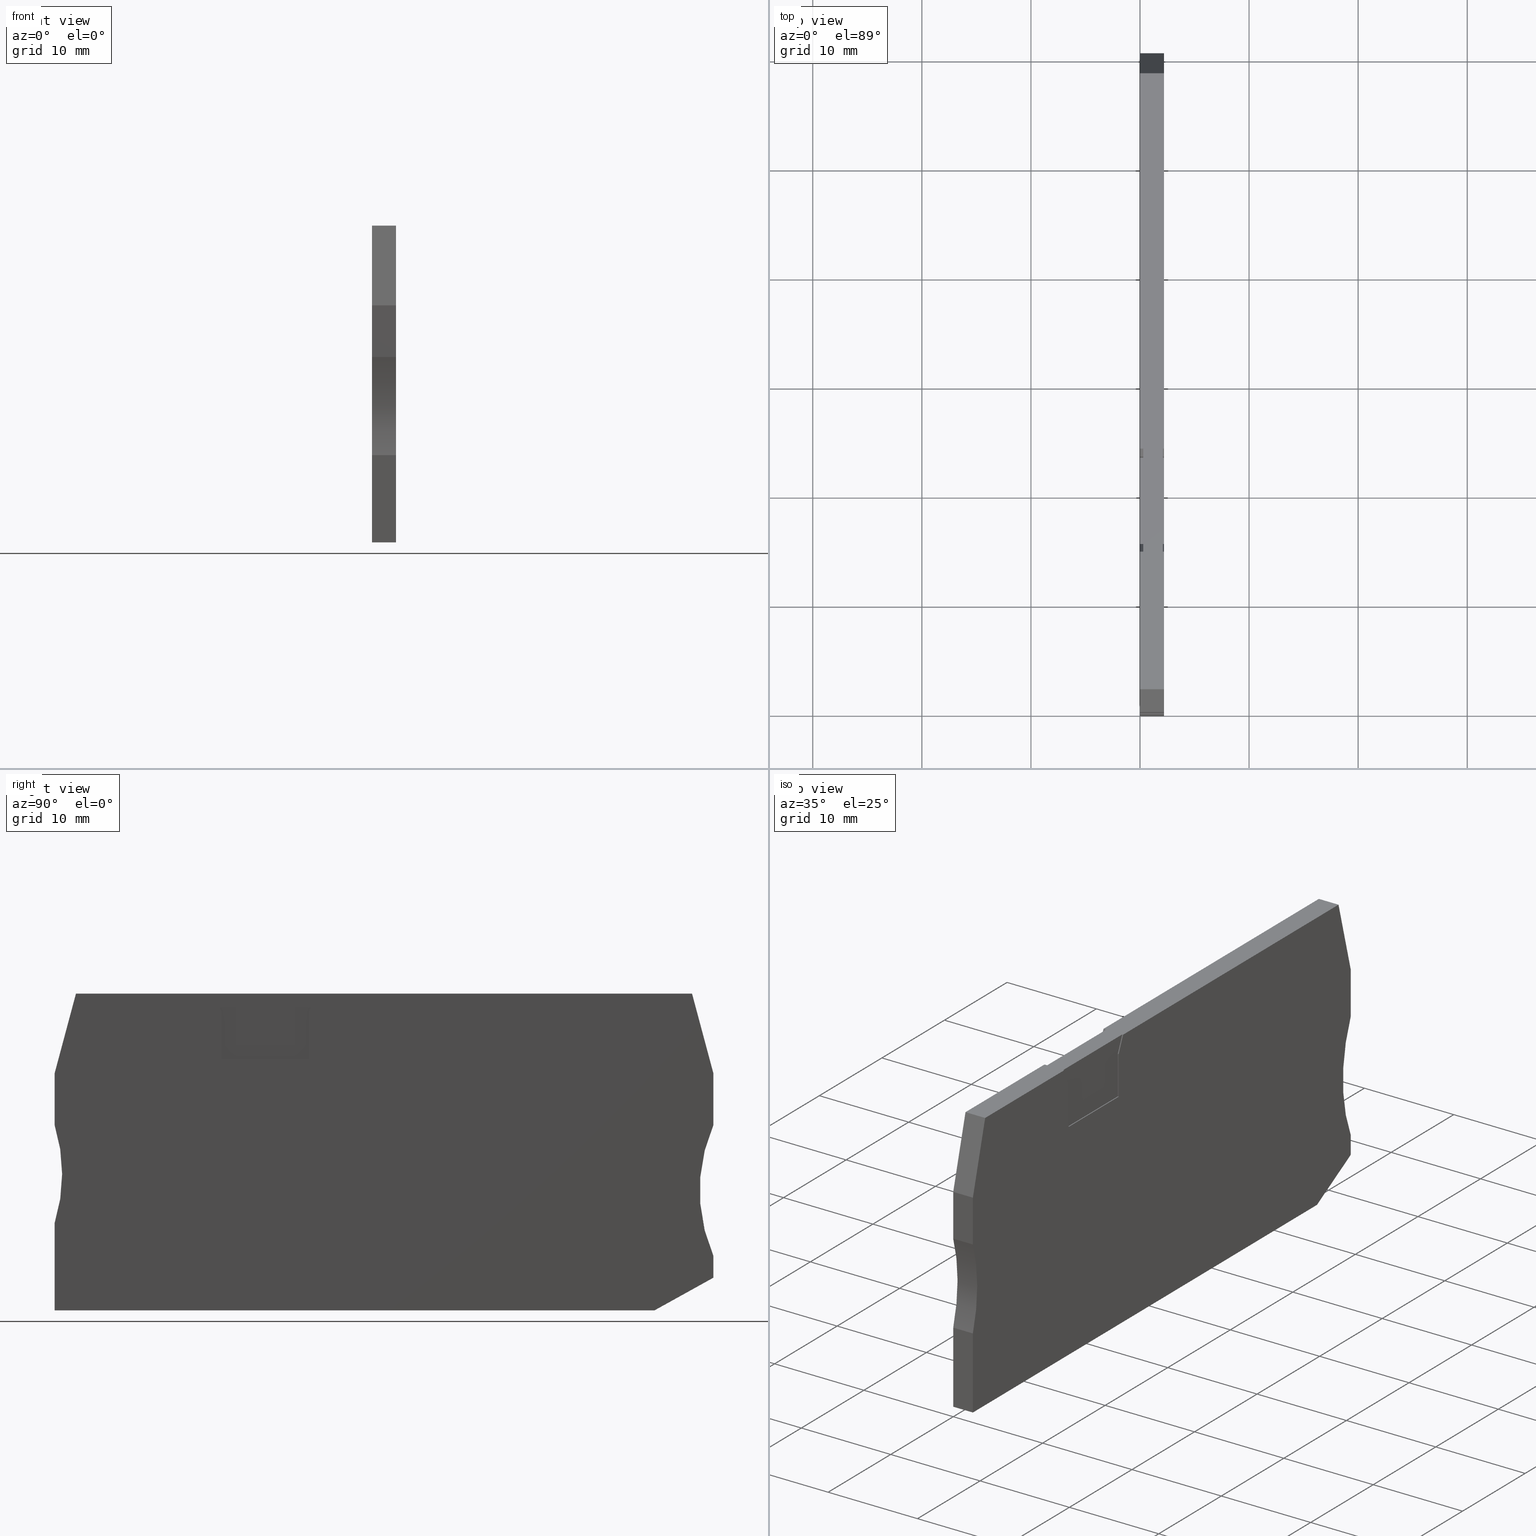
[diagram: canonical four-view strip — front | top / right | iso, engineering-drawing reading convention]
A machine part, canonical four-view strip (front | top / right | iso — engineering-drawing reading convention). The complete STEP part file that produces these views, byte-faithful:
ISO-10303-21;
HEADER;
FILE_DESCRIPTION(('Creo Elements/Direct Modeling STEP Export'),'2;1');
FILE_NAME(
'D:/temp/JobSpoolerServerData/JobServer Files/29ba83b2-660f-4959-82fb-90
b003ed063e/work/output/model.stp','2018-03-19T13:49:01',(''),(''),
'Creo Elements/Direct Modeling STEP processor for AP214 (Solid Model)',
'Creo Elements/Direct Modeling 18.1I  14-Aug-2016 (C) Parametric Technol
ogy GmbH','');
FILE_SCHEMA(('AUTOMOTIVE_DESIGN { 1 0 10303 214 1 1 1 1 }'));
ENDSEC;
DATA;
#10=CARTESIAN_POINT('',(2.23216722167601,-10.1500000000022,53.17));
#20=DIRECTION('',(0.,0.,-1.));
#30=DIRECTION('',(-1.,0.,0.));
#40=AXIS2_PLACEMENT_3D('',#10,#20,#30);
#50=PLANE('',#40);
#60=CARTESIAN_POINT('',(-21.2061407460473,-12.1300507694245,53.17));
#70=DIRECTION('',(-0.258819045103118,-0.965925826288908,0.));
#80=VECTOR('',#70,1.);
#90=LINE('',#60,#80);
#100=CARTESIAN_POINT('',(-20.4076385489742,-9.14999999999962,53.17));
#110=VERTEX_POINT('',#100);
#120=CARTESIAN_POINT('',(-22.367832778321,-16.4655444566073,53.17));
#130=VERTEX_POINT('',#120);
#140=EDGE_CURVE('',#110,#130,#90,.T.);
#150=ORIENTED_EDGE('',*,*,#140,.F.);
#160=CARTESIAN_POINT('',(-22.367832778321,-12.1300507694245,53.17));
#170=DIRECTION('',(0.,-1.,0.));
#180=VECTOR('',#170,1.);
#190=LINE('',#160,#180);
#200=CARTESIAN_POINT('',(-22.367832778321,-21.2000000000008,53.17));
#210=VERTEX_POINT('',#200);
#220=EDGE_CURVE('',#130,#210,#190,.T.);
#230=ORIENTED_EDGE('',*,*,#220,.F.);
#240=CARTESIAN_POINT('',(-36.6769207995752,-25.7000000000007,53.17));
#250=DIRECTION('',(0.,0.,1.));
#260=DIRECTION('',(1.,0.,0.));
#270=AXIS2_PLACEMENT_3D('',#240,#250,#260);
#280=CIRCLE('',#270,15.);
#290=CARTESIAN_POINT('',(-22.367832778321,-30.2000000000007,53.17));
#300=VERTEX_POINT('',#290);
#310=EDGE_CURVE('',#300,#210,#280,.T.);
#320=ORIENTED_EDGE('',*,*,#310,.T.);
#330=CARTESIAN_POINT('',(-22.367832778321,-12.1300507694245,53.17));
#340=DIRECTION('',(0.,-1.,0.));
#350=VECTOR('',#340,1.);
#360=LINE('',#330,#350);
#370=CARTESIAN_POINT('',(-22.367832778321,-38.1999999999931,53.17));
#380=VERTEX_POINT('',#370);
#390=EDGE_CURVE('',#300,#380,#360,.T.);
#400=ORIENTED_EDGE('',*,*,#390,.F.);
#410=CARTESIAN_POINT('',(11.4461541156319,-38.1999999999931,53.17));
#420=DIRECTION('',(1.,0.,0.));
#430=VECTOR('',#420,1.);
#440=LINE('',#410,#430);
#450=CARTESIAN_POINT('',(32.6248762617011,-38.1999999999931,53.17));
#460=VERTEX_POINT('',#450);
#470=EDGE_CURVE('',#380,#460,#440,.T.);
#480=ORIENTED_EDGE('',*,*,#470,.F.);
#490=CARTESIAN_POINT('',(11.4461541156319,-49.9500920346854,53.17));
#500=DIRECTION('',(0.874435210897321,0.485142311021165,0.));
#510=VECTOR('',#500,1.);
#520=LINE('',#490,#510);
#530=CARTESIAN_POINT('',(38.0321672216792,-35.199999999998,53.17));
#540=VERTEX_POINT('',#530);
#550=EDGE_CURVE('',#460,#540,#520,.T.);
#560=ORIENTED_EDGE('',*,*,#550,.F.);
#570=CARTESIAN_POINT('',(38.0321672216792,-12.1300507694245,53.17));
#580=DIRECTION('',(0.,1.,0.));
#590=VECTOR('',#580,1.);
#600=LINE('',#570,#590);
#610=CARTESIAN_POINT('',(38.0321672216792,-33.2000000000007,53.17));
#620=VERTEX_POINT('',#610);
#630=EDGE_CURVE('',#540,#620,#600,.T.);
#640=ORIENTED_EDGE('',*,*,#630,.F.);
#650=CARTESIAN_POINT('',(51.7798943065467,-27.2000000000007,53.17));
#660=DIRECTION('',(0.,0.,1.));
#670=DIRECTION('',(1.,0.,0.));
#680=AXIS2_PLACEMENT_3D('',#650,#660,#670);
#690=CIRCLE('',#680,15.);
#700=CARTESIAN_POINT('',(38.0321672216792,-21.2000000000007,53.17));
#710=VERTEX_POINT('',#700);
#720=EDGE_CURVE('',#710,#620,#690,.T.);
#730=ORIENTED_EDGE('',*,*,#720,.T.);
#740=CARTESIAN_POINT('',(38.0321672216792,-12.1300507694245,53.17));
#750=DIRECTION('',(0.,1.,0.));
#760=VECTOR('',#750,1.);
#770=LINE('',#740,#760);
#780=CARTESIAN_POINT('',(38.0321672216792,-16.4655444566058,53.17));
#790=VERTEX_POINT('',#780);
#800=EDGE_CURVE('',#710,#790,#770,.T.);
#810=ORIENTED_EDGE('',*,*,#800,.F.);
#820=CARTESIAN_POINT('',(36.8704751894059,-12.1300507694245,53.17));
#830=DIRECTION('',(-0.258819045103111,0.96592582628891,0.));
#840=VECTOR('',#830,1.);
#850=LINE('',#820,#840);
#860=CARTESIAN_POINT('',(36.0719729923328,-9.14999999999962,53.17));
#870=VERTEX_POINT('',#860);
#880=EDGE_CURVE('',#790,#870,#850,.T.);
#890=ORIENTED_EDGE('',*,*,#880,.F.);
#900=CARTESIAN_POINT('',(11.4461541156319,-9.14999999999962,53.17));
#910=DIRECTION('',(-1.,0.,0.));
#920=VECTOR('',#910,1.);
#930=LINE('',#900,#920);
#940=CARTESIAN_POINT('',(1.65066694096867,-9.14999999999962,53.17));
#950=VERTEX_POINT('',#940);
#960=EDGE_CURVE('',#870,#950,#930,.T.);
#970=ORIENTED_EDGE('',*,*,#960,.F.);
#980=CARTESIAN_POINT('',(0.391157740173536,-12.1300507694245,53.17));
#990=DIRECTION('',(0.389303997098565,0.921109330016302,0.));
#1000=VECTOR('',#990,1.);
#1010=LINE('',#980,#1000);
#1020=CARTESIAN_POINT('',(0.932167221679212,-10.8499999999587,53.17));
#1030=VERTEX_POINT('',#1020);
#1040=EDGE_CURVE('',#1030,#950,#1010,.T.);
#1050=ORIENTED_EDGE('',*,*,#1040,.T.);
#1060=CARTESIAN_POINT('',(0.932167221678688,-12.1300507694245,53.17));
#1070=DIRECTION('',(4.09450718512422E-13,1.,0.));
#1080=VECTOR('',#1070,1.);
#1090=LINE('',#1060,#1080);
#1100=CARTESIAN_POINT('',(0.932167221677451,-15.150000000008,53.17));
#1110=VERTEX_POINT('',#1100);
#1120=EDGE_CURVE('',#1110,#1030,#1090,.T.);
#1130=ORIENTED_EDGE('',*,*,#1120,.T.);
#1140=CARTESIAN_POINT('',(11.4461541156319,-15.1500000000123,53.17));
#1150=DIRECTION('',(1.,-4.08951118151342E-13,0.));
#1160=VECTOR('',#1150,1.);
#1170=LINE('',#1140,#1160);
#1180=CARTESIAN_POINT('',(-7.06783277832229,-15.1500000000048,53.17));
#1190=VERTEX_POINT('',#1180);
#1200=EDGE_CURVE('',#1190,#1110,#1170,.T.);
#1210=ORIENTED_EDGE('',*,*,#1200,.T.);
#1220=CARTESIAN_POINT('',(-7.06783277832108,-12.1300507694245,53.17));
#1230=DIRECTION('',(-3.99736267046952E-13,-1.,0.));
#1240=VECTOR('',#1230,1.);
#1250=LINE('',#1220,#1240);
#1260=CARTESIAN_POINT('',(-7.06783277832057,-10.8500000000082,53.17));
#1270=VERTEX_POINT('',#1260);
#1280=EDGE_CURVE('',#1270,#1190,#1250,.T.);
#1290=ORIENTED_EDGE('',*,*,#1280,.T.);
#1300=CARTESIAN_POINT('',(-6.52682329685673,-12.1300507694245,53.17));
#1310=DIRECTION('',(0.38930399708582,-0.921109330021689,0.));
#1320=VECTOR('',#1310,1.);
#1330=LINE('',#1300,#1320);
#1340=CARTESIAN_POINT('',(-7.78633249760118,-9.14999999999962,53.17));
#1350=VERTEX_POINT('',#1340);
#1360=EDGE_CURVE('',#1350,#1270,#1330,.T.);
#1370=ORIENTED_EDGE('',*,*,#1360,.T.);
#1380=EDGE_CURVE('',#1350,#110,#930,.T.);
#1390=ORIENTED_EDGE('',*,*,#1380,.F.);
#1400=EDGE_LOOP('',(#1390,#1370,#1290,#1210,#1130,#1050,#970,#890,#810,
#730,#640,#560,#480,#400,#320,#230,#150));
#1410=FACE_OUTER_BOUND('',#1400,.T.);
#1420=ADVANCED_FACE('',(#1410),#50,.T.);
#1430=COLOUR_RGB('',0.560784339904785,0.588235318660736,
0.600000023841858);
#1440=FILL_AREA_STYLE_COLOUR('',#1430);
#1450=FILL_AREA_STYLE('',(#1440));
#1460=SURFACE_STYLE_FILL_AREA(#1450);
#1470=SURFACE_SIDE_STYLE('',(#1460));
#1480=SURFACE_STYLE_USAGE(.BOTH.,#1470);
#1490=PRESENTATION_STYLE_ASSIGNMENT((#1480));
#1500=CARTESIAN_POINT('',(35.840579,-37.08196,55.37));
#1510=DIRECTION('',(0.,0.,-1.));
#1520=DIRECTION('',(-1.,0.,0.));
#1530=AXIS2_PLACEMENT_3D('',#1500,#1510,#1520);
#1540=PLANE('',#1530);
#1550=CARTESIAN_POINT('',(-6.52682329685673,-12.1300507694245,55.37));
#1560=DIRECTION('',(-0.38930399708582,0.921109330021689,0.));
#1570=VECTOR('',#1560,1.);
#1580=LINE('',#1550,#1570);
#1590=CARTESIAN_POINT('',(-7.06783277832054,-10.8500000000082,55.37));
#1600=VERTEX_POINT('',#1590);
#1610=CARTESIAN_POINT('',(-7.78633249760117,-9.14999999999962,55.37));
#1620=VERTEX_POINT('',#1610);
#1630=EDGE_CURVE('',#1600,#1620,#1580,.T.);
#1640=ORIENTED_EDGE('',*,*,#1630,.T.);
#1650=CARTESIAN_POINT('',(-7.06783277832105,-12.1300507694245,55.37));
#1660=DIRECTION('',(3.99736267046952E-13,1.,0.));
#1670=VECTOR('',#1660,1.);
#1680=LINE('',#1650,#1670);
#1690=CARTESIAN_POINT('',(-7.06783277832226,-15.1500000000049,55.37));
#1700=VERTEX_POINT('',#1690);
#1710=EDGE_CURVE('',#1700,#1600,#1680,.T.);
#1720=ORIENTED_EDGE('',*,*,#1710,.T.);
#1730=CARTESIAN_POINT('',(11.4461541156319,-15.1500000000125,55.37));
#1740=DIRECTION('',(-1.,4.08951118151342E-13,0.));
#1750=VECTOR('',#1740,1.);
#1760=LINE('',#1730,#1750);
#1770=CARTESIAN_POINT('',(0.932167221677473,-15.1500000000082,55.37));
#1780=VERTEX_POINT('',#1770);
#1790=EDGE_CURVE('',#1780,#1700,#1760,.T.);
#1800=ORIENTED_EDGE('',*,*,#1790,.T.);
#1810=CARTESIAN_POINT('',(0.932167221678709,-12.1300507694245,55.37));
#1820=DIRECTION('',(-4.09450718512422E-13,-1.,0.));
#1830=VECTOR('',#1820,1.);
#1840=LINE('',#1810,#1830);
#1850=CARTESIAN_POINT('',(0.932167221679233,-10.8499999999646,55.37));
#1860=VERTEX_POINT('',#1850);
#1870=EDGE_CURVE('',#1860,#1780,#1840,.T.);
#1880=ORIENTED_EDGE('',*,*,#1870,.T.);
#1890=CARTESIAN_POINT('',(0.391157740173632,-12.1300507694245,55.37));
#1900=DIRECTION('',(-0.389303997098565,-0.921109330016302,0.));
#1910=VECTOR('',#1900,1.);
#1920=LINE('',#1890,#1910);
#1930=CARTESIAN_POINT('',(1.65066694096876,-9.14999999999962,55.37));
#1940=VERTEX_POINT('',#1930);
#1950=EDGE_CURVE('',#1940,#1860,#1920,.T.);
#1960=ORIENTED_EDGE('',*,*,#1950,.T.);
#1970=CARTESIAN_POINT('',(11.4461541156319,-9.14999999999962,55.37));
#1980=DIRECTION('',(-1.,0.,0.));
#1990=VECTOR('',#1980,1.);
#2000=LINE('',#1970,#1990);
#2010=CARTESIAN_POINT('',(36.0719729923328,-9.14999999999962,55.37));
#2020=VERTEX_POINT('',#2010);
#2030=EDGE_CURVE('',#2020,#1940,#2000,.T.);
#2040=ORIENTED_EDGE('',*,*,#2030,.T.);
#2050=CARTESIAN_POINT('',(36.8704751894059,-12.1300507694245,55.37));
#2060=DIRECTION('',(0.258819045103111,-0.96592582628891,0.));
#2070=VECTOR('',#2060,1.);
#2080=LINE('',#2050,#2070);
#2090=CARTESIAN_POINT('',(38.0321672216792,-16.4655444566058,55.37));
#2100=VERTEX_POINT('',#2090);
#2110=EDGE_CURVE('',#2020,#2100,#2080,.T.);
#2120=ORIENTED_EDGE('',*,*,#2110,.F.);
#2130=CARTESIAN_POINT('',(38.0321672216792,-12.1300507694245,55.37));
#2140=DIRECTION('',(0.,-1.,0.));
#2150=VECTOR('',#2140,1.);
#2160=LINE('',#2130,#2150);
#2170=CARTESIAN_POINT('',(38.0321672216792,-21.2000000000007,55.37));
#2180=VERTEX_POINT('',#2170);
#2190=EDGE_CURVE('',#2100,#2180,#2160,.T.);
#2200=ORIENTED_EDGE('',*,*,#2190,.F.);
#2210=CARTESIAN_POINT('',(51.7798943065467,-27.2000000000007,55.37));
#2220=DIRECTION('',(0.,0.,1.));
#2230=DIRECTION('',(1.,0.,0.));
#2240=AXIS2_PLACEMENT_3D('',#2210,#2220,#2230);
#2250=CIRCLE('',#2240,15.);
#2260=CARTESIAN_POINT('',(38.0321672216792,-33.2000000000007,55.37));
#2270=VERTEX_POINT('',#2260);
#2280=EDGE_CURVE('',#2180,#2270,#2250,.T.);
#2290=ORIENTED_EDGE('',*,*,#2280,.F.);
#2300=CARTESIAN_POINT('',(38.0321672216792,-12.1300507694245,55.37));
#2310=DIRECTION('',(0.,-1.,0.));
#2320=VECTOR('',#2310,1.);
#2330=LINE('',#2300,#2320);
#2340=CARTESIAN_POINT('',(38.0321672216792,-35.199999999998,55.37));
#2350=VERTEX_POINT('',#2340);
#2360=EDGE_CURVE('',#2270,#2350,#2330,.T.);
#2370=ORIENTED_EDGE('',*,*,#2360,.F.);
#2380=CARTESIAN_POINT('',(11.4461541156319,-49.9500920346854,55.37));
#2390=DIRECTION('',(-0.874435210897321,-0.485142311021165,0.));
#2400=VECTOR('',#2390,1.);
#2410=LINE('',#2380,#2400);
#2420=CARTESIAN_POINT('',(32.6248762617011,-38.1999999999931,55.37));
#2430=VERTEX_POINT('',#2420);
#2440=EDGE_CURVE('',#2350,#2430,#2410,.T.);
#2450=ORIENTED_EDGE('',*,*,#2440,.F.);
#2460=CARTESIAN_POINT('',(11.4461541156319,-38.1999999999931,55.37));
#2470=DIRECTION('',(-1.,0.,0.));
#2480=VECTOR('',#2470,1.);
#2490=LINE('',#2460,#2480);
#2500=CARTESIAN_POINT('',(-22.367832778321,-38.1999999999931,55.37));
#2510=VERTEX_POINT('',#2500);
#2520=EDGE_CURVE('',#2430,#2510,#2490,.T.);
#2530=ORIENTED_EDGE('',*,*,#2520,.F.);
#2540=CARTESIAN_POINT('',(-22.367832778321,-12.1300507694245,55.37));
#2550=DIRECTION('',(0.,1.,0.));
#2560=VECTOR('',#2550,1.);
#2570=LINE('',#2540,#2560);
#2580=CARTESIAN_POINT('',(-22.367832778321,-30.2000000000007,55.37));
#2590=VERTEX_POINT('',#2580);
#2600=EDGE_CURVE('',#2510,#2590,#2570,.T.);
#2610=ORIENTED_EDGE('',*,*,#2600,.F.);
#2620=CARTESIAN_POINT('',(-36.6769207995752,-25.7000000000007,55.37));
#2630=DIRECTION('',(0.,0.,1.));
#2640=DIRECTION('',(1.,0.,0.));
#2650=AXIS2_PLACEMENT_3D('',#2620,#2630,#2640);
#2660=CIRCLE('',#2650,15.);
#2670=CARTESIAN_POINT('',(-22.367832778321,-21.2000000000008,55.37));
#2680=VERTEX_POINT('',#2670);
#2690=EDGE_CURVE('',#2590,#2680,#2660,.T.);
#2700=ORIENTED_EDGE('',*,*,#2690,.F.);
#2710=CARTESIAN_POINT('',(-22.367832778321,-12.1300507694245,55.37));
#2720=DIRECTION('',(0.,1.,0.));
#2730=VECTOR('',#2720,1.);
#2740=LINE('',#2710,#2730);
#2750=CARTESIAN_POINT('',(-22.367832778321,-16.4655444566073,55.37));
#2760=VERTEX_POINT('',#2750);
#2770=EDGE_CURVE('',#2680,#2760,#2740,.T.);
#2780=ORIENTED_EDGE('',*,*,#2770,.F.);
#2790=CARTESIAN_POINT('',(-21.2061407460473,-12.1300507694245,55.37));
#2800=DIRECTION('',(0.258819045103118,0.965925826288908,0.));
#2810=VECTOR('',#2800,1.);
#2820=LINE('',#2790,#2810);
#2830=CARTESIAN_POINT('',(-20.4076385489742,-9.14999999999962,55.37));
#2840=VERTEX_POINT('',#2830);
#2850=EDGE_CURVE('',#2760,#2840,#2820,.T.);
#2860=ORIENTED_EDGE('',*,*,#2850,.F.);
#2870=EDGE_CURVE('',#1620,#2840,#2000,.T.);
#2880=ORIENTED_EDGE('',*,*,#2870,.T.);
#2890=EDGE_LOOP('',(#2880,#2860,#2780,#2700,#2610,#2530,#2450,#2370,
#2290,#2200,#2120,#2040,#1960,#1880,#1800,#1720,#1640));
#2900=FACE_OUTER_BOUND('',#2890,.T.);
#2910=ADVANCED_FACE('',(#2900),#1540,.F.);
#2920=COLOUR_RGB('',0.560784339904785,0.588235318660736,
0.600000023841858);
#2930=FILL_AREA_STYLE_COLOUR('',#2920);
#2940=FILL_AREA_STYLE('',(#2930));
#2950=SURFACE_STYLE_FILL_AREA(#2940);
#2960=SURFACE_SIDE_STYLE('',(#2950));
#2970=SURFACE_STYLE_USAGE(.BOTH.,#2960);
#2980=PRESENTATION_STYLE_ASSIGNMENT((#2970));
#2990=CARTESIAN_POINT('',(-7.06783277832057,-10.8500000000082,53.17));
#3000=DIRECTION('',(1.,-3.99736267046952E-13,0.));
#3010=DIRECTION('',(3.99736267046952E-13,1.,2.21898203726618E-29));
#3020=AXIS2_PLACEMENT_3D('',#2990,#3000,#3010);
#3030=PLANE('',#3020);
#3040=CARTESIAN_POINT('',(-7.06783277832229,-15.1500000000048,53.17));
#3050=DIRECTION('',(0.,0.,1.));
#3060=VECTOR('',#3050,1.);
#3070=LINE('',#3040,#3060);
#3080=CARTESIAN_POINT('',(-7.06783277832229,-15.1500000000048,53.47));
#3090=VERTEX_POINT('',#3080);
#3100=EDGE_CURVE('',#1190,#3090,#3070,.T.);
#3110=ORIENTED_EDGE('',*,*,#3100,.F.);
#3120=CARTESIAN_POINT('',(-7.06783277832108,-12.1300507694297,53.47));
#3130=DIRECTION('',(3.99736267046952E-13,1.,2.21898203726618E-29));
#3140=VECTOR('',#3130,1.);
#3150=LINE('',#3120,#3140);
#3160=CARTESIAN_POINT('',(-7.06783277832057,-10.8500000000082,53.47));
#3170=VERTEX_POINT('',#3160);
#3180=EDGE_CURVE('',#3090,#3170,#3150,.T.);
#3190=ORIENTED_EDGE('',*,*,#3180,.F.);
#3200=CARTESIAN_POINT('',(-7.06783277832057,-10.8500000000082,53.17));
#3210=DIRECTION('',(0.,0.,1.));
#3220=VECTOR('',#3210,1.);
#3230=LINE('',#3200,#3220);
#3240=EDGE_CURVE('',#1270,#3170,#3230,.T.);
#3250=ORIENTED_EDGE('',*,*,#3240,.T.);
#3260=ORIENTED_EDGE('',*,*,#1280,.F.);
#3270=EDGE_LOOP('',(#3260,#3250,#3190,#3110));
#3280=FACE_OUTER_BOUND('',#3270,.T.);
#3290=ADVANCED_FACE('',(#3280),#3030,.T.);
#3300=COLOUR_RGB('',0.560784339904785,0.588235318660736,
0.600000023841858);
#3310=FILL_AREA_STYLE_COLOUR('',#3300);
#3320=FILL_AREA_STYLE('',(#3310));
#3330=SURFACE_STYLE_FILL_AREA(#3320);
#3340=SURFACE_SIDE_STYLE('',(#3330));
#3350=SURFACE_STYLE_USAGE(.BOTH.,#3340);
#3360=PRESENTATION_STYLE_ASSIGNMENT((#3350));
#3370=CARTESIAN_POINT('',(38.0151301348237,-16.4019611828481,55.37));
#3380=DIRECTION('',(0.96592582628891,0.258819045103111,0.));
#3390=DIRECTION('',(0.258819045103111,-0.96592582628891,0.));
#3400=AXIS2_PLACEMENT_3D('',#3370,#3380,#3390);
#3410=PLANE('',#3400);
#3420=CARTESIAN_POINT('',(36.0719729923328,-9.14999999999962,53.17));
#3430=DIRECTION('',(0.,0.,1.));
#3440=VECTOR('',#3430,1.);
#3450=LINE('',#3420,#3440);
#3460=EDGE_CURVE('',#870,#2020,#3450,.T.);
#3470=ORIENTED_EDGE('',*,*,#3460,.T.);
#3480=ORIENTED_EDGE('',*,*,#880,.T.);
#3490=CARTESIAN_POINT('',(38.0321672216792,-16.4655444566058,53.17));
#3500=DIRECTION('',(0.,0.,1.));
#3510=VECTOR('',#3500,1.);
#3520=LINE('',#3490,#3510);
#3530=EDGE_CURVE('',#790,#2100,#3520,.T.);
#3540=ORIENTED_EDGE('',*,*,#3530,.F.);
#3550=ORIENTED_EDGE('',*,*,#2110,.T.);
#3560=EDGE_LOOP('',(#3550,#3540,#3480,#3470));
#3570=FACE_OUTER_BOUND('',#3560,.T.);
#3580=ADVANCED_FACE('',(#3570),#3410,.T.);
#3590=COLOUR_RGB('',0.560784339904785,0.588235318660736,
0.600000023841858);
#3600=FILL_AREA_STYLE_COLOUR('',#3590);
#3610=FILL_AREA_STYLE('',(#3600));
#3620=SURFACE_STYLE_FILL_AREA(#3610);
#3630=SURFACE_SIDE_STYLE('',(#3620));
#3640=SURFACE_STYLE_USAGE(.BOTH.,#3630);
#3650=PRESENTATION_STYLE_ASSIGNMENT((#3640));
#3660=CARTESIAN_POINT('',(-7.06783277832229,-15.1500000000048,53.17));
#3670=DIRECTION('',(4.08951118151342E-13,1.,-0.));
#3680=DIRECTION('',(-1.,4.08951118151342E-13,-5.55111512312578E-17));
#3690=AXIS2_PLACEMENT_3D('',#3660,#3670,#3680);
#3700=PLANE('',#3690);
#3710=CARTESIAN_POINT('',(0.932167221677451,-15.150000000008,53.17));
#3720=DIRECTION('',(0.,0.,1.));
#3730=VECTOR('',#3720,1.);
#3740=LINE('',#3710,#3730);
#3750=CARTESIAN_POINT('',(0.932167221677451,-15.150000000008,53.47));
#3760=VERTEX_POINT('',#3750);
#3770=EDGE_CURVE('',#1110,#3760,#3740,.T.);
#3780=ORIENTED_EDGE('',*,*,#3770,.F.);
#3790=CARTESIAN_POINT('',(11.4461541156297,-15.1500000000123,53.47));
#3800=DIRECTION('',(-1.,4.08951118151342E-13,-5.55111512312578E-17));
#3810=VECTOR('',#3800,1.);
#3820=LINE('',#3790,#3810);
#3830=EDGE_CURVE('',#3760,#3090,#3820,.T.);
#3840=ORIENTED_EDGE('',*,*,#3830,.F.);
#3850=ORIENTED_EDGE('',*,*,#3100,.T.);
#3860=ORIENTED_EDGE('',*,*,#1200,.F.);
#3870=EDGE_LOOP('',(#3860,#3850,#3840,#3780));
#3880=FACE_OUTER_BOUND('',#3870,.T.);
#3890=ADVANCED_FACE('',(#3880),#3700,.T.);
#3900=COLOUR_RGB('',0.560784339904785,0.588235318660736,
0.600000023841858);
#3910=FILL_AREA_STYLE_COLOUR('',#3900);
#3920=FILL_AREA_STYLE('',(#3910));
#3930=SURFACE_STYLE_FILL_AREA(#3920);
#3940=SURFACE_SIDE_STYLE('',(#3930));
#3950=SURFACE_STYLE_USAGE(.BOTH.,#3940);
#3960=PRESENTATION_STYLE_ASSIGNMENT((#3950));
#3970=CARTESIAN_POINT('',(38.0321672216792,-20.796165862507,55.37));
#3980=DIRECTION('',(1.,0.,0.));
#3990=DIRECTION('',(0.,-1.,0.));
#4000=AXIS2_PLACEMENT_3D('',#3970,#3980,#3990);
#4010=PLANE('',#4000);
#4020=ORIENTED_EDGE('',*,*,#3530,.T.);
#4030=ORIENTED_EDGE('',*,*,#800,.T.);
#4040=CARTESIAN_POINT('',(38.0321672216792,-21.2000000000007,55.37));
#4050=DIRECTION('',(0.,0.,1.));
#4060=VECTOR('',#4050,1.);
#4070=LINE('',#4040,#4060);
#4080=EDGE_CURVE('',#710,#2180,#4070,.T.);
#4090=ORIENTED_EDGE('',*,*,#4080,.F.);
#4100=ORIENTED_EDGE('',*,*,#2190,.T.);
#4110=EDGE_LOOP('',(#4100,#4090,#4030,#4020));
#4120=FACE_OUTER_BOUND('',#4110,.T.);
#4130=ADVANCED_FACE('',(#4120),#4010,.T.);
#4140=COLOUR_RGB('',0.560784339904785,0.588235318660736,
0.600000023841858);
#4150=FILL_AREA_STYLE_COLOUR('',#4140);
#4160=FILL_AREA_STYLE('',(#4150));
#4170=SURFACE_STYLE_FILL_AREA(#4160);
#4180=SURFACE_SIDE_STYLE('',(#4170));
#4190=SURFACE_STYLE_USAGE(.BOTH.,#4180);
#4200=PRESENTATION_STYLE_ASSIGNMENT((#4190));
#4210=CARTESIAN_POINT('',(-7.78633249760137,-9.14999999999962,55.37));
#4220=DIRECTION('',(-0.,1.,0.));
#4230=DIRECTION('',(1.,0.,0.));
#4240=AXIS2_PLACEMENT_3D('',#4210,#4220,#4230);
#4250=PLANE('',#4240);
#4260=CARTESIAN_POINT('',(-7.78633249760325,-9.14999999999962,53.17));
#4270=DIRECTION('',(0.,0.,-1.));
#4280=VECTOR('',#4270,1.);
#4290=LINE('',#4260,#4280);
#4300=CARTESIAN_POINT('',(-7.78633249760118,-9.14999999999962,53.47));
#4310=VERTEX_POINT('',#4300);
#4320=EDGE_CURVE('',#4310,#1350,#4290,.T.);
#4330=ORIENTED_EDGE('',*,*,#4320,.T.);
#4340=CARTESIAN_POINT('',(11.4461541156319,-9.14999999999962,53.47));
#4350=DIRECTION('',(-1.,0.,-5.55111512312578E-17));
#4360=VECTOR('',#4350,1.);
#4370=LINE('',#4340,#4360);
#4380=CARTESIAN_POINT('',(1.65066694096867,-9.14999999999962,53.47));
#4390=VERTEX_POINT('',#4380);
#4400=EDGE_CURVE('',#4390,#4310,#4370,.T.);
#4410=ORIENTED_EDGE('',*,*,#4400,.T.);
#4420=CARTESIAN_POINT('',(1.65066694096867,-9.14999999999962,53.17));
#4430=DIRECTION('',(0.,0.,1.));
#4440=VECTOR('',#4430,1.);
#4450=LINE('',#4420,#4440);
#4460=EDGE_CURVE('',#950,#4390,#4450,.T.);
#4470=ORIENTED_EDGE('',*,*,#4460,.T.);
#4480=ORIENTED_EDGE('',*,*,#960,.T.);
#4490=ORIENTED_EDGE('',*,*,#3460,.F.);
#4500=ORIENTED_EDGE('',*,*,#2030,.F.);
#4510=CARTESIAN_POINT('',(1.65066694096876,-9.14999999999962,53.17));
#4520=DIRECTION('',(0.,0.,1.));
#4530=VECTOR('',#4520,1.);
#4540=LINE('',#4510,#4530);
#4550=CARTESIAN_POINT('',(1.65066694096876,-9.14999999999962,55.27));
#4560=VERTEX_POINT('',#4550);
#4570=EDGE_CURVE('',#4560,#1940,#4540,.T.);
#4580=ORIENTED_EDGE('',*,*,#4570,.T.);
#4590=CARTESIAN_POINT('',(11.4461541156319,-9.14999999999962,55.27));
#4600=DIRECTION('',(1.,0.,0.));
#4610=VECTOR('',#4600,1.);
#4620=LINE('',#4590,#4610);
#4630=CARTESIAN_POINT('',(-7.78633249760117,-9.14999999999962,55.27));
#4640=VERTEX_POINT('',#4630);
#4650=EDGE_CURVE('',#4640,#4560,#4620,.T.);
#4660=ORIENTED_EDGE('',*,*,#4650,.T.);
#4670=CARTESIAN_POINT('',(-7.78633249760326,-9.14999999999962,53.17));
#4680=DIRECTION('',(0.,0.,-1.));
#4690=VECTOR('',#4680,1.);
#4700=LINE('',#4670,#4690);
#4710=EDGE_CURVE('',#1620,#4640,#4700,.T.);
#4720=ORIENTED_EDGE('',*,*,#4710,.T.);
#4730=ORIENTED_EDGE('',*,*,#2870,.F.);
#4740=CARTESIAN_POINT('',(-20.4076385489742,-9.14999999999962,53.17));
#4750=DIRECTION('',(0.,0.,1.));
#4760=VECTOR('',#4750,1.);
#4770=LINE('',#4740,#4760);
#4780=EDGE_CURVE('',#110,#2840,#4770,.T.);
#4790=ORIENTED_EDGE('',*,*,#4780,.T.);
#4800=ORIENTED_EDGE('',*,*,#1380,.T.);
#4810=EDGE_LOOP('',(#4800,#4790,#4730,#4720,#4660,#4580,#4500,#4490,
#4480,#4470,#4410,#4330));
#4820=FACE_OUTER_BOUND('',#4810,.T.);
#4830=ADVANCED_FACE('',(#4820),#4250,.T.);
#4840=COLOUR_RGB('',0.560784339904785,0.588235318660736,
0.600000023841858);
#4850=FILL_AREA_STYLE_COLOUR('',#4840);
#4860=FILL_AREA_STYLE('',(#4850));
#4870=SURFACE_STYLE_FILL_AREA(#4860);
#4880=SURFACE_SIDE_STYLE('',(#4870));
#4890=SURFACE_STYLE_USAGE(.BOTH.,#4880);
#4900=PRESENTATION_STYLE_ASSIGNMENT((#4890));
#4910=CARTESIAN_POINT('',(-22.367832778321,-16.5313707054011,55.37));
#4920=DIRECTION('',(-1.,0.,0.));
#4930=DIRECTION('',(0.,1.,0.));
#4940=AXIS2_PLACEMENT_3D('',#4910,#4920,#4930);
#4950=PLANE('',#4940);
#4960=CARTESIAN_POINT('',(-22.367832778321,-21.2000000000008,55.37));
#4970=DIRECTION('',(0.,0.,1.));
#4980=VECTOR('',#4970,1.);
#4990=LINE('',#4960,#4980);
#5000=EDGE_CURVE('',#210,#2680,#4990,.T.);
#5010=ORIENTED_EDGE('',*,*,#5000,.T.);
#5020=ORIENTED_EDGE('',*,*,#220,.T.);
#5030=CARTESIAN_POINT('',(-22.367832778321,-16.4655444566073,53.17));
#5040=DIRECTION('',(0.,0.,1.));
#5050=VECTOR('',#5040,1.);
#5060=LINE('',#5030,#5050);
#5070=EDGE_CURVE('',#130,#2760,#5060,.T.);
#5080=ORIENTED_EDGE('',*,*,#5070,.F.);
#5090=ORIENTED_EDGE('',*,*,#2770,.T.);
#5100=EDGE_LOOP('',(#5090,#5080,#5020,#5010));
#5110=FACE_OUTER_BOUND('',#5100,.T.);
#5120=ADVANCED_FACE('',(#5110),#4950,.T.);
#5130=COLOUR_RGB('',0.560784339904785,0.588235318660736,
0.600000023841858);
#5140=FILL_AREA_STYLE_COLOUR('',#5130);
#5150=FILL_AREA_STYLE('',(#5140));
#5160=SURFACE_STYLE_FILL_AREA(#5150);
#5170=SURFACE_SIDE_STYLE('',(#5160));
#5180=SURFACE_STYLE_USAGE(.BOTH.,#5170);
#5190=PRESENTATION_STYLE_ASSIGNMENT((#5180));
#5200=CARTESIAN_POINT('',(-20.5069379681296,-9.52059047744864,55.37));
#5210=DIRECTION('',(-0.965925826288908,0.258819045103118,0.));
#5220=DIRECTION('',(0.258819045103118,0.965925826288908,0.));
#5230=AXIS2_PLACEMENT_3D('',#5200,#5210,#5220);
#5240=PLANE('',#5230);
#5250=ORIENTED_EDGE('',*,*,#5070,.T.);
#5260=ORIENTED_EDGE('',*,*,#140,.T.);
#5270=ORIENTED_EDGE('',*,*,#4780,.F.);
#5280=ORIENTED_EDGE('',*,*,#2850,.T.);
#5290=EDGE_LOOP('',(#5280,#5270,#5260,#5250));
#5300=FACE_OUTER_BOUND('',#5290,.T.);
#5310=ADVANCED_FACE('',(#5300),#5240,.T.);
#5320=COLOUR_RGB('',0.560784339904785,0.588235318660736,
0.600000023841858);
#5330=FILL_AREA_STYLE_COLOUR('',#5320);
#5340=FILL_AREA_STYLE('',(#5330));
#5350=SURFACE_STYLE_FILL_AREA(#5340);
#5360=SURFACE_SIDE_STYLE('',(#5350));
#5370=SURFACE_STYLE_USAGE(.BOTH.,#5360);
#5380=PRESENTATION_STYLE_ASSIGNMENT((#5370));
#5390=CARTESIAN_POINT('',(-36.6769207995752,-25.7000000000007,55.37));
#5400=DIRECTION('',(0.,0.,1.));
#5410=DIRECTION('',(1.,0.,0.));
#5420=AXIS2_PLACEMENT_3D('',#5390,#5400,#5410);
#5430=CYLINDRICAL_SURFACE('',#5420,15.);
#5440=CARTESIAN_POINT('',(-22.367832778321,-30.2000000000007,55.37));
#5450=DIRECTION('',(0.,0.,1.));
#5460=VECTOR('',#5450,1.);
#5470=LINE('',#5440,#5460);
#5480=EDGE_CURVE('',#300,#2590,#5470,.T.);
#5490=ORIENTED_EDGE('',*,*,#5480,.T.);
#5500=ORIENTED_EDGE('',*,*,#310,.F.);
#5510=ORIENTED_EDGE('',*,*,#5000,.F.);
#5520=ORIENTED_EDGE('',*,*,#2690,.T.);
#5530=EDGE_LOOP('',(#5520,#5510,#5500,#5490));
#5540=FACE_OUTER_BOUND('',#5530,.T.);
#5550=ADVANCED_FACE('',(#5540),#5430,.F.);
#5560=COLOUR_RGB('',0.560784339904785,0.588235318660736,
0.600000023841858);
#5570=FILL_AREA_STYLE_COLOUR('',#5560);
#5580=FILL_AREA_STYLE('',(#5570));
#5590=SURFACE_STYLE_FILL_AREA(#5580);
#5600=SURFACE_SIDE_STYLE('',(#5590));
#5610=SURFACE_STYLE_USAGE(.BOTH.,#5600);
#5620=PRESENTATION_STYLE_ASSIGNMENT((#5610));
#5630=CARTESIAN_POINT('',(-22.367832778321,-30.4972542057921,55.37));
#5640=DIRECTION('',(-1.,0.,0.));
#5650=DIRECTION('',(0.,1.,0.));
#5660=AXIS2_PLACEMENT_3D('',#5630,#5640,#5650);
#5670=PLANE('',#5660);
#5680=CARTESIAN_POINT('',(-22.367832778321,-38.1999999999931,53.17));
#5690=DIRECTION('',(0.,0.,-1.));
#5700=VECTOR('',#5690,1.);
#5710=LINE('',#5680,#5700);
#5720=EDGE_CURVE('',#2510,#380,#5710,.T.);
#5730=ORIENTED_EDGE('',*,*,#5720,.F.);
#5740=ORIENTED_EDGE('',*,*,#390,.T.);
#5750=ORIENTED_EDGE('',*,*,#5480,.F.);
#5760=ORIENTED_EDGE('',*,*,#2600,.T.);
#5770=EDGE_LOOP('',(#5760,#5750,#5740,#5730));
#5780=FACE_OUTER_BOUND('',#5770,.T.);
#5790=ADVANCED_FACE('',(#5780),#5670,.T.);
#5800=COLOUR_RGB('',0.560784339904785,0.588235318660736,
0.600000023841858);
#5810=FILL_AREA_STYLE_COLOUR('',#5800);
#5820=FILL_AREA_STYLE('',(#5810));
#5830=SURFACE_STYLE_FILL_AREA(#5820);
#5840=SURFACE_SIDE_STYLE('',(#5830));
#5850=SURFACE_STYLE_USAGE(.BOTH.,#5840);
#5860=PRESENTATION_STYLE_ASSIGNMENT((#5850));
#5870=CARTESIAN_POINT('',(-18.367832778321,-38.1999999999931,55.37));
#5880=DIRECTION('',(-0.,-1.,-0.));
#5890=DIRECTION('',(-1.,0.,0.));
#5900=AXIS2_PLACEMENT_3D('',#5870,#5880,#5890);
#5910=PLANE('',#5900);
#5920=CARTESIAN_POINT('',(32.6248762617011,-38.1999999999931,53.17));
#5930=DIRECTION('',(0.,0.,1.));
#5940=VECTOR('',#5930,1.);
#5950=LINE('',#5920,#5940);
#5960=EDGE_CURVE('',#460,#2430,#5950,.T.);
#5970=ORIENTED_EDGE('',*,*,#5960,.T.);
#5980=ORIENTED_EDGE('',*,*,#470,.T.);
#5990=ORIENTED_EDGE('',*,*,#5720,.T.);
#6000=ORIENTED_EDGE('',*,*,#2520,.T.);
#6010=EDGE_LOOP('',(#6000,#5990,#5980,#5970));
#6020=FACE_OUTER_BOUND('',#6010,.T.);
#6030=ADVANCED_FACE('',(#6020),#5910,.T.);
#6040=COLOUR_RGB('',0.560784339904785,0.588235318660736,
0.600000023841858);
#6050=FILL_AREA_STYLE_COLOUR('',#6040);
#6060=FILL_AREA_STYLE('',(#6050));
#6070=SURFACE_STYLE_FILL_AREA(#6060);
#6080=SURFACE_SIDE_STYLE('',(#6070));
#6090=SURFACE_STYLE_USAGE(.BOTH.,#6080);
#6100=PRESENTATION_STYLE_ASSIGNMENT((#6090));
#6110=CARTESIAN_POINT('',(38.0321672216792,-34.0224223302916,55.37));
#6120=DIRECTION('',(1.,0.,0.));
#6130=DIRECTION('',(0.,-1.,0.));
#6140=AXIS2_PLACEMENT_3D('',#6110,#6120,#6130);
#6150=PLANE('',#6140);
#6160=CARTESIAN_POINT('',(38.0321672216792,-33.2000000000007,55.37));
#6170=DIRECTION('',(0.,0.,1.));
#6180=VECTOR('',#6170,1.);
#6190=LINE('',#6160,#6180);
#6200=EDGE_CURVE('',#620,#2270,#6190,.T.);
#6210=ORIENTED_EDGE('',*,*,#6200,.T.);
#6220=ORIENTED_EDGE('',*,*,#630,.T.);
#6230=CARTESIAN_POINT('',(38.0321672216792,-35.199999999998,53.17));
#6240=DIRECTION('',(0.,0.,1.));
#6250=VECTOR('',#6240,1.);
#6260=LINE('',#6230,#6250);
#6270=EDGE_CURVE('',#540,#2350,#6260,.T.);
#6280=ORIENTED_EDGE('',*,*,#6270,.F.);
#6290=ORIENTED_EDGE('',*,*,#2360,.T.);
#6300=EDGE_LOOP('',(#6290,#6280,#6220,#6210));
#6310=FACE_OUTER_BOUND('',#6300,.T.);
#6320=ADVANCED_FACE('',(#6310),#6150,.T.);
#6330=COLOUR_RGB('',0.560784339904785,0.588235318660736,
0.600000023841858);
#6340=FILL_AREA_STYLE_COLOUR('',#6330);
#6350=FILL_AREA_STYLE('',(#6340));
#6360=SURFACE_STYLE_FILL_AREA(#6350);
#6370=SURFACE_SIDE_STYLE('',(#6360));
#6380=SURFACE_STYLE_USAGE(.BOTH.,#6370);
#6390=PRESENTATION_STYLE_ASSIGNMENT((#6380));
#6400=CARTESIAN_POINT('',(33.0775198276946,-37.9488704217941,55.37));
#6410=DIRECTION('',(0.485142311021165,-0.874435210897321,0.));
#6420=DIRECTION('',(-0.874435210897321,-0.485142311021165,0.));
#6430=AXIS2_PLACEMENT_3D('',#6400,#6410,#6420);
#6440=PLANE('',#6430);
#6450=ORIENTED_EDGE('',*,*,#6270,.T.);
#6460=ORIENTED_EDGE('',*,*,#550,.T.);
#6470=ORIENTED_EDGE('',*,*,#5960,.F.);
#6480=ORIENTED_EDGE('',*,*,#2440,.T.);
#6490=EDGE_LOOP('',(#6480,#6470,#6460,#6450));
#6500=FACE_OUTER_BOUND('',#6490,.T.);
#6510=ADVANCED_FACE('',(#6500),#6440,.T.);
#6520=COLOUR_RGB('',0.560784339904785,0.588235318660736,
0.600000023841858);
#6530=FILL_AREA_STYLE_COLOUR('',#6520);
#6540=FILL_AREA_STYLE('',(#6530));
#6550=SURFACE_STYLE_FILL_AREA(#6540);
#6560=SURFACE_SIDE_STYLE('',(#6550));
#6570=SURFACE_STYLE_USAGE(.BOTH.,#6560);
#6580=PRESENTATION_STYLE_ASSIGNMENT((#6570));
#6590=CARTESIAN_POINT('',(51.7798943065467,-27.2000000000007,55.37));
#6600=DIRECTION('',(0.,0.,1.));
#6610=DIRECTION('',(1.,0.,0.));
#6620=AXIS2_PLACEMENT_3D('',#6590,#6600,#6610);
#6630=CYLINDRICAL_SURFACE('',#6620,15.);
#6640=ORIENTED_EDGE('',*,*,#4080,.T.);
#6650=ORIENTED_EDGE('',*,*,#720,.F.);
#6660=ORIENTED_EDGE('',*,*,#6200,.F.);
#6670=ORIENTED_EDGE('',*,*,#2280,.T.);
#6680=EDGE_LOOP('',(#6670,#6660,#6650,#6640));
#6690=FACE_OUTER_BOUND('',#6680,.T.);
#6700=ADVANCED_FACE('',(#6690),#6630,.F.);
#6710=COLOUR_RGB('',0.560784339904785,0.588235318660736,
0.600000023841858);
#6720=FILL_AREA_STYLE_COLOUR('',#6710);
#6730=FILL_AREA_STYLE('',(#6720));
#6740=SURFACE_STYLE_FILL_AREA(#6730);
#6750=SURFACE_SIDE_STYLE('',(#6740));
#6760=SURFACE_STYLE_USAGE(.BOTH.,#6750);
#6770=PRESENTATION_STYLE_ASSIGNMENT((#6760));
#6780=CARTESIAN_POINT('',(1.65066694096839,-9.15000000000049,55.37));
#6790=DIRECTION('',(-0.921109330016302,0.389303997098565,0.));
#6800=DIRECTION('',(0.389303997098565,0.921109330016302,0.));
#6810=AXIS2_PLACEMENT_3D('',#6780,#6790,#6800);
#6820=PLANE('',#6810);
#6830=CARTESIAN_POINT('',(0.932167221679233,-10.8499999999657,55.37));
#6840=DIRECTION('',(0.,0.,-1.));
#6850=VECTOR('',#6840,1.);
#6860=LINE('',#6830,#6850);
#6870=CARTESIAN_POINT('',(0.932167221679233,-10.8499999999657,55.27));
#6880=VERTEX_POINT('',#6870);
#6890=EDGE_CURVE('',#1860,#6880,#6860,.T.);
#6900=ORIENTED_EDGE('',*,*,#6890,.F.);
#6910=CARTESIAN_POINT('',(0.391157740170115,-12.1300507694328,55.27));
#6920=DIRECTION('',(0.389303997098565,0.921109330016302,0.));
#6930=VECTOR('',#6920,1.);
#6940=LINE('',#6910,#6930);
#6950=EDGE_CURVE('',#6880,#4560,#6940,.T.);
#6960=ORIENTED_EDGE('',*,*,#6950,.F.);
#6970=ORIENTED_EDGE('',*,*,#4570,.F.);
#6980=ORIENTED_EDGE('',*,*,#1950,.F.);
#6990=EDGE_LOOP('',(#6980,#6970,#6960,#6900));
#7000=FACE_OUTER_BOUND('',#6990,.T.);
#7010=ADVANCED_FACE('',(#7000),#6820,.T.);
#7020=COLOUR_RGB('',0.560784339904785,0.588235318660736,
0.600000023841858);
#7030=FILL_AREA_STYLE_COLOUR('',#7020);
#7040=FILL_AREA_STYLE('',(#7030));
#7050=SURFACE_STYLE_FILL_AREA(#7040);
#7060=SURFACE_SIDE_STYLE('',(#7050));
#7070=SURFACE_STYLE_USAGE(.BOTH.,#7060);
#7080=PRESENTATION_STYLE_ASSIGNMENT((#7070));
#7090=CARTESIAN_POINT('',(7.8321672216793,-23.6749999999963,55.27));
#7100=DIRECTION('',(0.,0.,1.));
#7110=DIRECTION('',(1.,0.,0.));
#7120=AXIS2_PLACEMENT_3D('',#7090,#7100,#7110);
#7130=PLANE('',#7120);
#7140=ORIENTED_EDGE('',*,*,#4650,.F.);
#7150=ORIENTED_EDGE('',*,*,#6950,.T.);
#7160=CARTESIAN_POINT('',(0.932167221678711,-12.130050769433,55.27));
#7170=DIRECTION('',(4.09450718512422E-13,1.,0.));
#7180=VECTOR('',#7170,1.);
#7190=LINE('',#7160,#7180);
#7200=CARTESIAN_POINT('',(0.932167221677473,-15.1500000000082,55.27));
#7210=VERTEX_POINT('',#7200);
#7220=EDGE_CURVE('',#7210,#6880,#7190,.T.);
#7230=ORIENTED_EDGE('',*,*,#7220,.T.);
#7240=CARTESIAN_POINT('',(11.4461541156297,-15.1500000000125,55.27));
#7250=DIRECTION('',(-1.,4.08951118151342E-13,0.));
#7260=VECTOR('',#7250,1.);
#7270=LINE('',#7240,#7260);
#7280=CARTESIAN_POINT('',(-7.06783277832226,-15.1500000000049,55.27));
#7290=VERTEX_POINT('',#7280);
#7300=EDGE_CURVE('',#7210,#7290,#7270,.T.);
#7310=ORIENTED_EDGE('',*,*,#7300,.F.);
#7320=CARTESIAN_POINT('',(-7.06783277832105,-12.1300507694298,55.27));
#7330=DIRECTION('',(3.99736267046952E-13,1.,0.));
#7340=VECTOR('',#7330,1.);
#7350=LINE('',#7320,#7340);
#7360=CARTESIAN_POINT('',(-7.06783277832059,-10.8500000000082,55.27));
#7370=VERTEX_POINT('',#7360);
#7380=EDGE_CURVE('',#7290,#7370,#7350,.T.);
#7390=ORIENTED_EDGE('',*,*,#7380,.F.);
#7400=CARTESIAN_POINT('',(-6.52682329685441,-12.13005076943,55.27));
#7410=DIRECTION('',(0.38930399708582,-0.921109330021689,0.));
#7420=VECTOR('',#7410,1.);
#7430=LINE('',#7400,#7420);
#7440=EDGE_CURVE('',#4640,#7370,#7430,.T.);
#7450=ORIENTED_EDGE('',*,*,#7440,.T.);
#7460=EDGE_LOOP('',(#7450,#7390,#7310,#7230,#7150,#7140));
#7470=FACE_OUTER_BOUND('',#7460,.T.);
#7480=ADVANCED_FACE('',(#7470),#7130,.T.);
#7490=COLOUR_RGB('',0.560784339904785,0.588235318660736,
0.600000023841858);
#7500=FILL_AREA_STYLE_COLOUR('',#7490);
#7510=FILL_AREA_STYLE('',(#7500));
#7520=SURFACE_STYLE_FILL_AREA(#7510);
#7530=SURFACE_SIDE_STYLE('',(#7520));
#7540=SURFACE_STYLE_USAGE(.BOTH.,#7530);
#7550=PRESENTATION_STYLE_ASSIGNMENT((#7540));
#7560=CARTESIAN_POINT('',(-7.06783277832059,-10.8500000000082,55.37));
#7570=DIRECTION('',(0.921109330021689,0.38930399708582,0.));
#7580=DIRECTION('',(0.38930399708582,-0.921109330021689,0.));
#7590=AXIS2_PLACEMENT_3D('',#7560,#7570,#7580);
#7600=PLANE('',#7590);
#7610=ORIENTED_EDGE('',*,*,#4710,.F.);
#7620=ORIENTED_EDGE('',*,*,#7440,.F.);
#7630=CARTESIAN_POINT('',(-7.06783277832059,-10.8500000000082,55.37));
#7640=DIRECTION('',(0.,0.,-1.));
#7650=VECTOR('',#7640,1.);
#7660=LINE('',#7630,#7650);
#7670=EDGE_CURVE('',#1600,#7370,#7660,.T.);
#7680=ORIENTED_EDGE('',*,*,#7670,.T.);
#7690=ORIENTED_EDGE('',*,*,#1630,.F.);
#7700=EDGE_LOOP('',(#7690,#7680,#7620,#7610));
#7710=FACE_OUTER_BOUND('',#7700,.T.);
#7720=ADVANCED_FACE('',(#7710),#7600,.T.);
#7730=COLOUR_RGB('',0.560784339904785,0.588235318660736,
0.600000023841858);
#7740=FILL_AREA_STYLE_COLOUR('',#7730);
#7750=FILL_AREA_STYLE('',(#7740));
#7760=SURFACE_STYLE_FILL_AREA(#7750);
#7770=SURFACE_SIDE_STYLE('',(#7760));
#7780=SURFACE_STYLE_USAGE(.BOTH.,#7770);
#7790=PRESENTATION_STYLE_ASSIGNMENT((#7780));
#7800=CARTESIAN_POINT('',(-7.06783277832226,-15.1500000000049,55.37));
#7810=DIRECTION('',(1.,-3.99736267046952E-13,0.));
#7820=DIRECTION('',(-3.99736267046952E-13,-1.,0.));
#7830=AXIS2_PLACEMENT_3D('',#7800,#7810,#7820);
#7840=PLANE('',#7830);
#7850=ORIENTED_EDGE('',*,*,#7670,.F.);
#7860=ORIENTED_EDGE('',*,*,#7380,.T.);
#7870=CARTESIAN_POINT('',(-7.06783277832226,-15.1500000000049,55.37));
#7880=DIRECTION('',(0.,0.,-1.));
#7890=VECTOR('',#7880,1.);
#7900=LINE('',#7870,#7890);
#7910=EDGE_CURVE('',#1700,#7290,#7900,.T.);
#7920=ORIENTED_EDGE('',*,*,#7910,.T.);
#7930=ORIENTED_EDGE('',*,*,#1710,.F.);
#7940=EDGE_LOOP('',(#7930,#7920,#7860,#7850));
#7950=FACE_OUTER_BOUND('',#7940,.T.);
#7960=ADVANCED_FACE('',(#7950),#7840,.T.);
#7970=COLOUR_RGB('',0.560784339904785,0.588235318660736,
0.600000023841858);
#7980=FILL_AREA_STYLE_COLOUR('',#7970);
#7990=FILL_AREA_STYLE('',(#7980));
#8000=SURFACE_STYLE_FILL_AREA(#7990);
#8010=SURFACE_SIDE_STYLE('',(#8000));
#8020=SURFACE_STYLE_USAGE(.BOTH.,#8010);
#8030=PRESENTATION_STYLE_ASSIGNMENT((#8020));
#8040=CARTESIAN_POINT('',(0.932167221677473,-15.1500000000082,55.37));
#8050=DIRECTION('',(4.08951118151342E-13,1.,0.));
#8060=DIRECTION('',(1.,-4.08951118151342E-13,0.));
#8070=AXIS2_PLACEMENT_3D('',#8040,#8050,#8060);
#8080=PLANE('',#8070);
#8090=ORIENTED_EDGE('',*,*,#7910,.F.);
#8100=ORIENTED_EDGE('',*,*,#7300,.T.);
#8110=CARTESIAN_POINT('',(0.932167221677473,-15.1500000000082,55.37));
#8120=DIRECTION('',(0.,0.,-1.));
#8130=VECTOR('',#8120,1.);
#8140=LINE('',#8110,#8130);
#8150=EDGE_CURVE('',#1780,#7210,#8140,.T.);
#8160=ORIENTED_EDGE('',*,*,#8150,.T.);
#8170=ORIENTED_EDGE('',*,*,#1790,.F.);
#8180=EDGE_LOOP('',(#8170,#8160,#8100,#8090));
#8190=FACE_OUTER_BOUND('',#8180,.T.);
#8200=ADVANCED_FACE('',(#8190),#8080,.T.);
#8210=COLOUR_RGB('',0.560784339904785,0.588235318660736,
0.600000023841858);
#8220=FILL_AREA_STYLE_COLOUR('',#8210);
#8230=FILL_AREA_STYLE('',(#8220));
#8240=SURFACE_STYLE_FILL_AREA(#8230);
#8250=SURFACE_SIDE_STYLE('',(#8240));
#8260=SURFACE_STYLE_USAGE(.BOTH.,#8250);
#8270=PRESENTATION_STYLE_ASSIGNMENT((#8260));
#8280=CARTESIAN_POINT('',(0.932167221679233,-10.8499999999657,55.37));
#8290=DIRECTION('',(-1.,4.09450718512422E-13,0.));
#8300=DIRECTION('',(4.09450718512422E-13,1.,0.));
#8310=AXIS2_PLACEMENT_3D('',#8280,#8290,#8300);
#8320=PLANE('',#8310);
#8330=ORIENTED_EDGE('',*,*,#8150,.F.);
#8340=ORIENTED_EDGE('',*,*,#7220,.F.);
#8350=ORIENTED_EDGE('',*,*,#6890,.T.);
#8360=ORIENTED_EDGE('',*,*,#1870,.F.);
#8370=EDGE_LOOP('',(#8360,#8350,#8340,#8330));
#8380=FACE_OUTER_BOUND('',#8370,.T.);
#8390=ADVANCED_FACE('',(#8380),#8320,.T.);
#8400=COLOUR_RGB('',0.560784339904785,0.588235318660736,
0.600000023841858);
#8410=FILL_AREA_STYLE_COLOUR('',#8400);
#8420=FILL_AREA_STYLE('',(#8410));
#8430=SURFACE_STYLE_FILL_AREA(#8420);
#8440=SURFACE_SIDE_STYLE('',(#8430));
#8450=SURFACE_STYLE_USAGE(.BOTH.,#8440);
#8460=PRESENTATION_STYLE_ASSIGNMENT((#8450));
#8470=CARTESIAN_POINT('',(-7.78633249760118,-9.15000000000455,53.17));
#8480=DIRECTION('',(0.921109330021689,0.38930399708582,-0.));
#8490=DIRECTION('',(-0.38930399708582,0.921109330021689,
-2.16107130571641E-17));
#8500=AXIS2_PLACEMENT_3D('',#8470,#8480,#8490);
#8510=PLANE('',#8500);
#8520=ORIENTED_EDGE('',*,*,#3240,.F.);
#8530=CARTESIAN_POINT('',(-6.52682329685444,-12.1300507694299,53.47));
#8540=DIRECTION('',(0.38930399708582,-0.921109330021689,
2.16107130571641E-17));
#8550=VECTOR('',#8540,1.);
#8560=LINE('',#8530,#8550);
#8570=EDGE_CURVE('',#4310,#3170,#8560,.T.);
#8580=ORIENTED_EDGE('',*,*,#8570,.T.);
#8590=ORIENTED_EDGE('',*,*,#4320,.F.);
#8600=ORIENTED_EDGE('',*,*,#1360,.F.);
#8610=EDGE_LOOP('',(#8600,#8590,#8580,#8520));
#8620=FACE_OUTER_BOUND('',#8610,.T.);
#8630=ADVANCED_FACE('',(#8620),#8510,.T.);
#8640=COLOUR_RGB('',0.560784339904785,0.588235318660736,
0.600000023841858);
#8650=FILL_AREA_STYLE_COLOUR('',#8640);
#8660=FILL_AREA_STYLE('',(#8650));
#8670=SURFACE_STYLE_FILL_AREA(#8660);
#8680=SURFACE_SIDE_STYLE('',(#8670));
#8690=SURFACE_STYLE_USAGE(.BOTH.,#8680);
#8700=PRESENTATION_STYLE_ASSIGNMENT((#8690));
#8710=CARTESIAN_POINT('',(7.8321672216793,-23.6749999999963,53.47));
#8720=DIRECTION('',(5.55111512312578E-17,0.,-1.));
#8730=DIRECTION('',(-1.,0.,-5.55111512312578E-17));
#8740=AXIS2_PLACEMENT_3D('',#8710,#8720,#8730);
#8750=PLANE('',#8740);
#8760=ORIENTED_EDGE('',*,*,#4400,.F.);
#8770=ORIENTED_EDGE('',*,*,#8570,.F.);
#8780=ORIENTED_EDGE('',*,*,#3180,.T.);
#8790=ORIENTED_EDGE('',*,*,#3830,.T.);
#8800=CARTESIAN_POINT('',(0.932167221678689,-12.130050769433,53.47));
#8810=DIRECTION('',(-4.09450718512422E-13,-1.,-2.27290807570902E-29));
#8820=VECTOR('',#8810,1.);
#8830=LINE('',#8800,#8820);
#8840=CARTESIAN_POINT('',(0.932167221679212,-10.8499999999587,53.47));
#8850=VERTEX_POINT('',#8840);
#8860=EDGE_CURVE('',#8850,#3760,#8830,.T.);
#8870=ORIENTED_EDGE('',*,*,#8860,.T.);
#8880=CARTESIAN_POINT('',(0.391157740170076,-12.1300507694327,53.47));
#8890=DIRECTION('',(0.389303997098565,0.921109330016302,
2.16107130578716E-17));
#8900=VECTOR('',#8890,1.);
#8910=LINE('',#8880,#8900);
#8920=EDGE_CURVE('',#8850,#4390,#8910,.T.);
#8930=ORIENTED_EDGE('',*,*,#8920,.F.);
#8940=EDGE_LOOP('',(#8930,#8870,#8790,#8780,#8770,#8760));
#8950=FACE_OUTER_BOUND('',#8940,.T.);
#8960=ADVANCED_FACE('',(#8950),#8750,.T.);
#8970=COLOUR_RGB('',0.560784339904785,0.588235318660736,
0.600000023841858);
#8980=FILL_AREA_STYLE_COLOUR('',#8970);
#8990=FILL_AREA_STYLE('',(#8980));
#9000=SURFACE_STYLE_FILL_AREA(#8990);
#9010=SURFACE_SIDE_STYLE('',(#9000));
#9020=SURFACE_STYLE_USAGE(.BOTH.,#9010);
#9030=PRESENTATION_STYLE_ASSIGNMENT((#9020));
#9040=CARTESIAN_POINT('',(0.932167221679212,-10.8499999999587,53.17));
#9050=DIRECTION('',(-0.921109330016302,0.389303997098565,0.));
#9060=DIRECTION('',(-0.389303997098565,-0.921109330016302,
-2.16107130578716E-17));
#9070=AXIS2_PLACEMENT_3D('',#9040,#9050,#9060);
#9080=PLANE('',#9070);
#9090=ORIENTED_EDGE('',*,*,#4460,.F.);
#9100=ORIENTED_EDGE('',*,*,#8920,.T.);
#9110=CARTESIAN_POINT('',(0.932167221679212,-10.8499999999587,53.17));
#9120=DIRECTION('',(0.,0.,1.));
#9130=VECTOR('',#9120,1.);
#9140=LINE('',#9110,#9130);
#9150=EDGE_CURVE('',#1030,#8850,#9140,.T.);
#9160=ORIENTED_EDGE('',*,*,#9150,.T.);
#9170=ORIENTED_EDGE('',*,*,#1040,.F.);
#9180=EDGE_LOOP('',(#9170,#9160,#9100,#9090));
#9190=FACE_OUTER_BOUND('',#9180,.T.);
#9200=ADVANCED_FACE('',(#9190),#9080,.T.);
#9210=COLOUR_RGB('',0.560784339904785,0.588235318660736,
0.600000023841858);
#9220=FILL_AREA_STYLE_COLOUR('',#9210);
#9230=FILL_AREA_STYLE('',(#9220));
#9240=SURFACE_STYLE_FILL_AREA(#9230);
#9250=SURFACE_SIDE_STYLE('',(#9240));
#9260=SURFACE_STYLE_USAGE(.BOTH.,#9250);
#9270=PRESENTATION_STYLE_ASSIGNMENT((#9260));
#9280=CARTESIAN_POINT('',(0.932167221677451,-15.150000000008,53.17));
#9290=DIRECTION('',(-1.,4.09450718512422E-13,0.));
#9300=DIRECTION('',(-4.09450718512422E-13,-1.,-2.27290807570902E-29));
#9310=AXIS2_PLACEMENT_3D('',#9280,#9290,#9300);
#9320=PLANE('',#9310);
#9330=ORIENTED_EDGE('',*,*,#9150,.F.);
#9340=ORIENTED_EDGE('',*,*,#8860,.F.);
#9350=ORIENTED_EDGE('',*,*,#3770,.T.);
#9360=ORIENTED_EDGE('',*,*,#1120,.F.);
#9370=EDGE_LOOP('',(#9360,#9350,#9340,#9330));
#9380=FACE_OUTER_BOUND('',#9370,.T.);
#9390=ADVANCED_FACE('',(#9380),#9320,.T.);
#9400=COLOUR_RGB('',0.560784339904785,0.588235318660736,
0.600000023841858);
#9410=FILL_AREA_STYLE_COLOUR('',#9400);
#9420=FILL_AREA_STYLE('',(#9410));
#9430=SURFACE_STYLE_FILL_AREA(#9420);
#9440=SURFACE_SIDE_STYLE('',(#9430));
#9450=SURFACE_STYLE_USAGE(.BOTH.,#9440);
#9460=PRESENTATION_STYLE_ASSIGNMENT((#9450));
#9470=CLOSED_SHELL('',(#1420,#2910,#3290,#3580,#3890,#4130,#4830,#5120,
#5310,#5550,#5790,#6030,#6320,#6510,#6700,#7010,#7480,#7720,#7960,#8200,
#8390,#8630,#8960,#9200,#9390));
#9480=MANIFOLD_SOLID_BREP('',#9470);
#9490=CARTESIAN_POINT('',(0.,0.,0.));
#9500=DIRECTION('',(0.,0.,1.));
#9510=DIRECTION('',(1.,0.,0.));
#9520=AXIS2_PLACEMENT_3D('',#9490,#9500,#9510);
#9530=APPLICATION_CONTEXT(' ');
#9540=APPLICATION_PROTOCOL_DEFINITION(' ','automotive_design',1998,#9530
);
#9550=PRODUCT_CONTEXT('',#9530,'mechanical');
#9560=PRODUCT_DEFINITION_CONTEXT('part definition',#9530,'design');
#9570=PRODUCT('D-ST_2.5-TWIN-SELECT','D-ST_2.5-TWIN-SELECT','',(#9550));
#9580=PRODUCT_RELATED_PRODUCT_CATEGORY('part',' ',(#9570));
#9590=PRODUCT_DEFINITION_FORMATION_WITH_SPECIFIED_SOURCE('','',#9570,
.BOUGHT.);
#9600=PRODUCT_DEFINITION('',' ',#9590,#9560);
#9610=PRODUCT_DEFINITION_SHAPE('','',#9600);
#9620=DIMENSIONAL_EXPONENTS(1.,0.,0.,0.,0.,0.,0.);
#9630=DIMENSIONAL_EXPONENTS(0.,0.,0.,0.,0.,0.,0.);
#9640=DIMENSIONAL_EXPONENTS(0.,0.,0.,0.,0.,0.,0.);
#9650=(LENGTH_UNIT() NAMED_UNIT(*) SI_UNIT(.MILLI.,.METRE.));
#9660=(NAMED_UNIT(*) PLANE_ANGLE_UNIT() SI_UNIT($,.RADIAN.));
#9670=(NAMED_UNIT(*) SI_UNIT($,.STERADIAN.) SOLID_ANGLE_UNIT());
#9680=(GEOMETRIC_REPRESENTATION_CONTEXT(3) 
GLOBAL_UNCERTAINTY_ASSIGNED_CONTEXT((#9690)) 
GLOBAL_UNIT_ASSIGNED_CONTEXT((#9650,#9660,#9670)) REPRESENTATION_CONTEXT
('',''));
#9690=UNCERTAINTY_MEASURE_WITH_UNIT(LENGTH_MEASURE(1.E-6),#9650,
'distance_accuracy_value','maximum gap value');
#9700=ADVANCED_BREP_SHAPE_REPRESENTATION('',(#9520,#9480),#9680);
#9710=SHAPE_DEFINITION_REPRESENTATION(#9610,#9700);
#9720=COLOUR_RGB('',0.560784339904785,0.588235318660736,
0.600000023841858);
#9730=FILL_AREA_STYLE_COLOUR('',#9720);
#9740=FILL_AREA_STYLE('',(#9730));
#9750=SURFACE_STYLE_FILL_AREA(#9740);
#9760=SURFACE_SIDE_STYLE('',(#9750));
#9770=SURFACE_STYLE_USAGE(.BOTH.,#9760);
#9780=PRESENTATION_STYLE_ASSIGNMENT((#9770));
#9790=STYLED_ITEM('',(#9780),#9480);
#9800=OVER_RIDING_STYLED_ITEM('',(#1490),#1420,#9790);
#9810=OVER_RIDING_STYLED_ITEM('',(#2980),#2910,#9790);
#9820=OVER_RIDING_STYLED_ITEM('',(#3360),#3290,#9790);
#9830=OVER_RIDING_STYLED_ITEM('',(#3650),#3580,#9790);
#9840=OVER_RIDING_STYLED_ITEM('',(#3960),#3890,#9790);
#9850=OVER_RIDING_STYLED_ITEM('',(#4200),#4130,#9790);
#9860=OVER_RIDING_STYLED_ITEM('',(#4900),#4830,#9790);
#9870=OVER_RIDING_STYLED_ITEM('',(#5190),#5120,#9790);
#9880=OVER_RIDING_STYLED_ITEM('',(#5380),#5310,#9790);
#9890=OVER_RIDING_STYLED_ITEM('',(#5620),#5550,#9790);
#9900=OVER_RIDING_STYLED_ITEM('',(#5860),#5790,#9790);
#9910=OVER_RIDING_STYLED_ITEM('',(#6100),#6030,#9790);
#9920=OVER_RIDING_STYLED_ITEM('',(#6390),#6320,#9790);
#9930=OVER_RIDING_STYLED_ITEM('',(#6580),#6510,#9790);
#9940=OVER_RIDING_STYLED_ITEM('',(#6770),#6700,#9790);
#9950=OVER_RIDING_STYLED_ITEM('',(#7080),#7010,#9790);
#9960=OVER_RIDING_STYLED_ITEM('',(#7550),#7480,#9790);
#9970=OVER_RIDING_STYLED_ITEM('',(#7790),#7720,#9790);
#9980=OVER_RIDING_STYLED_ITEM('',(#8030),#7960,#9790);
#9990=OVER_RIDING_STYLED_ITEM('',(#8270),#8200,#9790);
#10000=OVER_RIDING_STYLED_ITEM('',(#8460),#8390,#9790);
#10010=OVER_RIDING_STYLED_ITEM('',(#8700),#8630,#9790);
#10020=OVER_RIDING_STYLED_ITEM('',(#9030),#8960,#9790);
#10030=OVER_RIDING_STYLED_ITEM('',(#9270),#9200,#9790);
#10040=OVER_RIDING_STYLED_ITEM('',(#9460),#9390,#9790);
#10050=DRAUGHTING_MODEL('',(#9790,#9800,#9810,#9820,#9830,#9840,#9850,
#9860,#9870,#9880,#9890,#9900,#9910,#9920,#9930,#9940,#9950,#9960,#9970,
#9980,#9990,#10000,#10010,#10020,#10030,#10040),#9680);
#10060=CARTESIAN_POINT('',(-53.1699999999991,22.3678327783247,
38.1999999999948));
#10070=DIRECTION('',(1.,0.,0.));
#10080=DIRECTION('',(0.,1.,0.));
#10090=AXIS2_PLACEMENT_3D('',#10060,#10070,#10080);
#10100=ITEM_DEFINED_TRANSFORMATION('D-ST_2.5-TWIN-SELECT','',#9520,
#10090);
#10110=APPLICATION_CONTEXT(' ');
#10120=APPLICATION_PROTOCOL_DEFINITION(' ','automotive_design',1998,
#10110);
#10130=PRODUCT_CONTEXT('',#10110,'mechanical');
#10140=PRODUCT_DEFINITION_CONTEXT('part definition',#10110,'design');
#10150=PRODUCT('D-ST_2.5-TWIN-SELECT','D-ST_2.5-TWIN-SELECT','',(#10130)
);
#10160=PRODUCT_RELATED_PRODUCT_CATEGORY('part',' ',(#10150));
#10170=PRODUCT_DEFINITION_FORMATION_WITH_SPECIFIED_SOURCE('','',#10150,
.BOUGHT.);
#10180=PRODUCT_DEFINITION('',' ',#10170,#10140);
#10190=PRODUCT_DEFINITION_SHAPE('','',#10180);
#10200=DIMENSIONAL_EXPONENTS(1.,0.,0.,0.,0.,0.,0.);
#10210=DIMENSIONAL_EXPONENTS(0.,0.,0.,0.,0.,0.,0.);
#10220=DIMENSIONAL_EXPONENTS(0.,0.,0.,0.,0.,0.,0.);
#10230=(LENGTH_UNIT() NAMED_UNIT(*) SI_UNIT(.MILLI.,.METRE.));
#10240=(NAMED_UNIT(*) PLANE_ANGLE_UNIT() SI_UNIT($,.RADIAN.));
#10250=(NAMED_UNIT(*) SI_UNIT($,.STERADIAN.) SOLID_ANGLE_UNIT());
#10260=(GEOMETRIC_REPRESENTATION_CONTEXT(3) 
GLOBAL_UNCERTAINTY_ASSIGNED_CONTEXT((#10270)) 
GLOBAL_UNIT_ASSIGNED_CONTEXT((#10230,#10240,#10250)) 
REPRESENTATION_CONTEXT('',''));
#10270=UNCERTAINTY_MEASURE_WITH_UNIT(LENGTH_MEASURE(1.E-6),#10230,
'distance_accuracy_value','maximum gap value');
#10280=SHAPE_REPRESENTATION('',(#9520,#10090),#10260);
#10290=SHAPE_DEFINITION_REPRESENTATION(#10190,#10280);
#10300=(REPRESENTATION_RELATIONSHIP('','',#9700,#10280) 
REPRESENTATION_RELATIONSHIP_WITH_TRANSFORMATION(#10100) 
SHAPE_REPRESENTATION_RELATIONSHIP());
#10310=NEXT_ASSEMBLY_USAGE_OCCURRENCE('1','','D-ST_2.5-TWIN-SELECT',
#10180,#9600,'');
#10320=PRODUCT_DEFINITION_SHAPE('','',#10310);
#10330=CONTEXT_DEPENDENT_SHAPE_REPRESENTATION(#10300,#10320);
ENDSEC;
END-ISO-10303-21;
